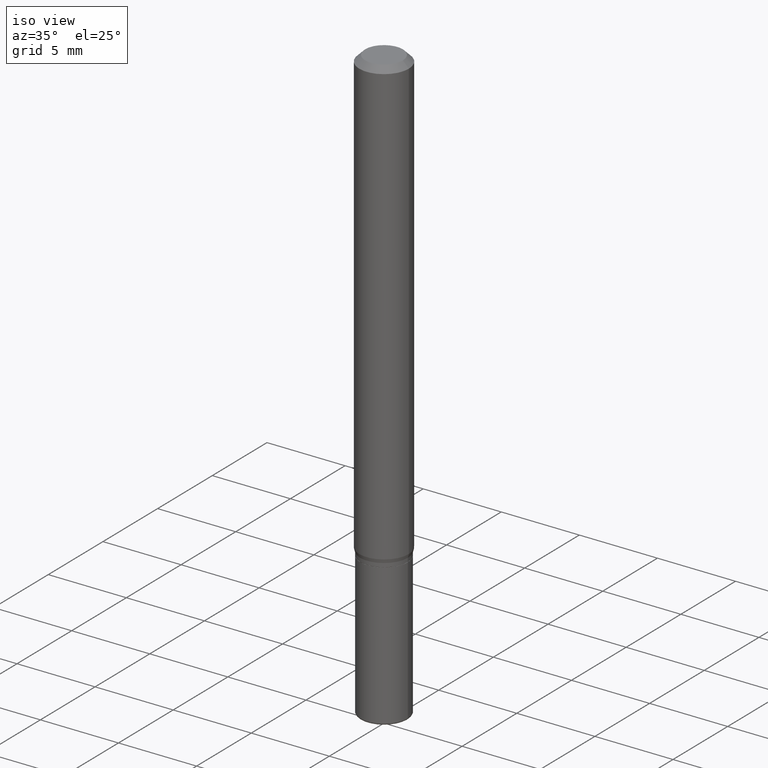
[diagram: clean part render]
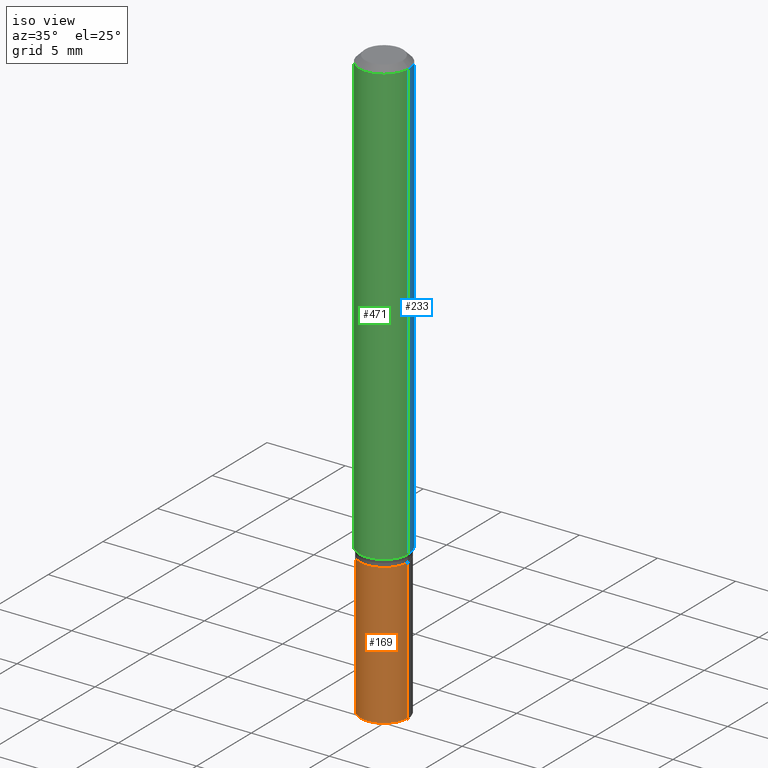
[diagram: same view with three faces highlighted in distinct colors, each labeled with its STEP entity id]
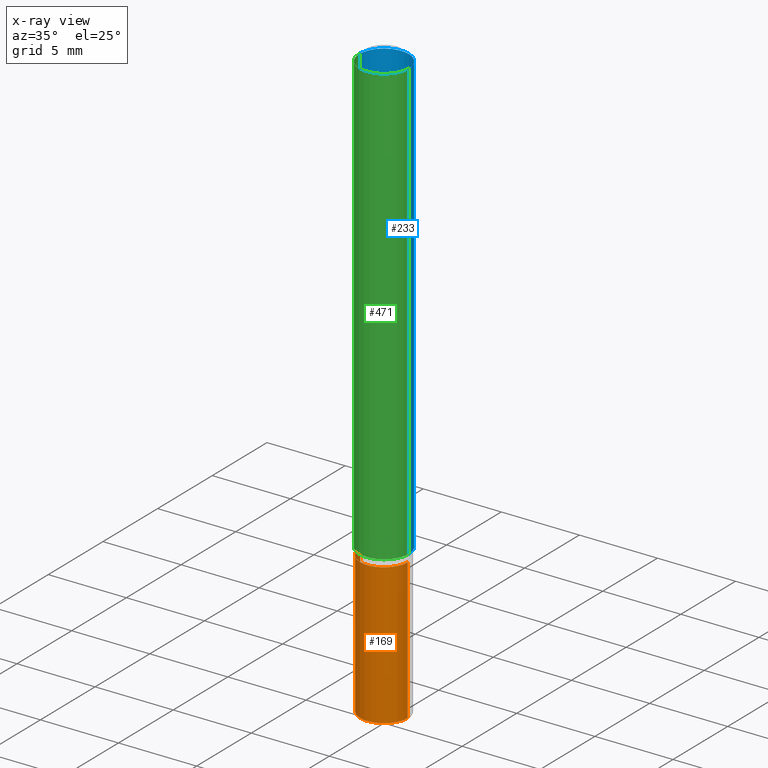
[diagram: x-ray of the same camera — body ghosted, the three highlighted faces saturated]
A machine part, iso view with three faces highlighted in distinct colors.
The next image is the same camera in x-ray (body ghosted, the three faces saturated) — at least one of them is partly hidden behind the body in this view.
Their STEP definitions:

[orange] entity #169 — the highlighted cylindrical surface (edge-blend (fillet) strip) has radius 1.524 mm, axis along (-0, 0, 1).
#5 = DIRECTION ( 'NONE',  ( 1.000000000000000000, -6.982962677686265922E-15, 4.876176775795935793E-29 ) ) ;
#13 = EDGE_CURVE ( 'NONE', #200, #102, #367, .T. ) ;
#28 = CARTESIAN_POINT ( 'NONE',  ( 2.787834439051055989E-29, -3.980288726281186698E-15, -1.140000000000000124 ) ) ;
#29 = CARTESIAN_POINT ( 'NONE',  ( 3.655975865246779122E-29, -5.219764601570503141E-15, -1.495000000000000107 ) ) ;
#44 = EDGE_CURVE ( 'NONE', #102, #347, #398, .T. ) ;
#45 = DIRECTION ( 'NONE',  ( -2.445468806185136877E-29, 3.491481338843145188E-15, 1.000000000000000000 ) ) ;
#59 = ORIENTED_EDGE ( 'NONE', *, *, #204, .F. ) ;
#70 = ORIENTED_EDGE ( 'NONE', *, *, #44, .T. ) ;
#102 = VERTEX_POINT ( 'NONE', #157 ) ;
#107 = VERTEX_POINT ( 'NONE', #129 ) ;
#125 = VECTOR ( 'NONE', #45, 39.37007874015748143 ) ;
#127 = AXIS2_PLACEMENT_3D ( 'NONE', #29, #161, #443 ) ;
#129 = CARTESIAN_POINT ( 'NONE',  ( -0.05999999999999999778, -4.173701022469784429E-15, -1.140000000000000124 ) ) ;
#133 = LINE ( 'NONE', #484, #125 ) ;
#157 = CARTESIAN_POINT ( 'NONE',  ( 0.06000000000000017819, -5.638742362231680564E-15, -1.495000000000000107 ) ) ;
#161 = DIRECTION ( 'NONE',  ( -2.445468806185136597E-29, 3.491481338843145583E-15, 1.000000000000000000 ) ) ;
#163 = CYLINDRICAL_SURFACE ( 'NONE', #457, 0.06000000000000009492 ) ;
#169 = ADVANCED_FACE ( 'NONE', ( #486 ), #163, .T. ) ;
#184 = ORIENTED_EDGE ( 'NONE', *, *, #13, .T. ) ;
#193 = DIRECTION ( 'NONE',  ( -2.445468806185136877E-29, 3.491481338843145188E-15, 1.000000000000000000 ) ) ;
#200 = VERTEX_POINT ( 'NONE', #489 ) ;
#204 = EDGE_CURVE ( 'NONE', #200, #107, #133, .T. ) ;
#241 = CIRCLE ( 'NONE', #414, 0.05999999999999999778 ) ;
#326 = VECTOR ( 'NONE', #193, 39.37007874015748143 ) ;
#347 = VERTEX_POINT ( 'NONE', #428 ) ;
#353 = CARTESIAN_POINT ( 'NONE',  ( 0.06000000000000009492, -4.189777606611766337E-16, 2.925706065477565960E-30 ) ) ;
#359 = ORIENTED_EDGE ( 'NONE', *, *, #463, .F. ) ;
#361 = DIRECTION ( 'NONE',  ( 1.000000000000000000, -6.982962677686268288E-15, 0.000000000000000000 ) ) ;
#367 = CIRCLE ( 'NONE', #127, 0.06000000000000017819 ) ;
#390 = EDGE_LOOP ( 'NONE', ( #59, #184, #70, #359 ) ) ;
#398 = LINE ( 'NONE', #353, #326 ) ;
#413 = CARTESIAN_POINT ( 'NONE',  ( 0.000000000000000000, 0.000000000000000000, 0.000000000000000000 ) ) ;
#414 = AXIS2_PLACEMENT_3D ( 'NONE', #28, #467, #361 ) ;
#428 = CARTESIAN_POINT ( 'NONE',  ( 0.05999999999999999778, -4.399266486942362543E-15, -1.140000000000000124 ) ) ;
#443 = DIRECTION ( 'NONE',  ( 1.000000000000000000, -6.982962677686263555E-15, 0.000000000000000000 ) ) ;
#446 = DIRECTION ( 'NONE',  ( -2.445468806185136597E-29, 3.491481338843145583E-15, 1.000000000000000000 ) ) ;
#457 = AXIS2_PLACEMENT_3D ( 'NONE', #413, #446, #5 ) ;
#463 = EDGE_CURVE ( 'NONE', #107, #347, #241, .T. ) ;
#467 = DIRECTION ( 'NONE',  ( -2.445468806185136597E-29, 3.491481338843145583E-15, 1.000000000000000000 ) ) ;
#484 = CARTESIAN_POINT ( 'NONE',  ( -0.06000000000000009492, 4.263256414560607860E-16, -2.951361054152947967E-30 ) ) ;
#486 = FACE_OUTER_BOUND ( 'NONE', #390, .T. ) ;
#489 = CARTESIAN_POINT ( 'NONE',  ( -0.06000000000000017125, -4.173701022469782852E-15, -1.495000000000000107 ) ) ;

[blue] entity #233 — the highlighted cylindrical surface (edge-blend (fillet) strip) has radius 1.5875 mm, axis along (-0, 0, 1).
#10 = CIRCLE ( 'NONE', #514, 0.06250000000000000000 ) ;
#14 = LINE ( 'NONE', #336, #99 ) ;
#24 = ORIENTED_EDGE ( 'NONE', *, *, #423, .T. ) ;
#26 = ORIENTED_EDGE ( 'NONE', *, *, #178, .T. ) ;
#50 = DIRECTION ( 'NONE',  ( 1.000000000000000000, -6.982962677686262766E-15, 0.000000000000000000 ) ) ;
#58 = DIRECTION ( 'NONE',  ( 1.000000000000000000, -6.982962677686266711E-15, 0.000000000000000000 ) ) ;
#81 = VERTEX_POINT ( 'NONE', #198 ) ;
#83 = DIRECTION ( 'NONE',  ( -2.445468806185136877E-29, 3.491481338843145188E-15, 1.000000000000000000 ) ) ;
#91 = CARTESIAN_POINT ( 'NONE',  ( 2.740563216406686834E-29, -3.912797948517154069E-15, -1.120669872981078452 ) ) ;
#99 = VECTOR ( 'NONE', #138, 39.37007874015748143 ) ;
#103 = EDGE_CURVE ( 'NONE', #396, #509, #321, .T. ) ;
#105 = ORIENTED_EDGE ( 'NONE', *, *, #340, .F. ) ;
#106 = DIRECTION ( 'NONE',  ( -2.445468806185136597E-29, 3.491481338843145583E-15, 1.000000000000000000 ) ) ;
#138 = DIRECTION ( 'NONE',  ( -2.445468806185136877E-29, 3.491481338843145188E-15, 1.000000000000000000 ) ) ;
#146 = CARTESIAN_POINT ( 'NONE',  ( 3.668203209277632395E-31, -5.237222008264614861E-17, -0.01499999999999970281 ) ) ;
#152 = CARTESIAN_POINT ( 'NONE',  ( 0.06250000000000000000, -4.888073874380378612E-16, -0.01499999999999970281 ) ) ;
#168 = DIRECTION ( 'NONE',  ( -2.445468806185136597E-29, 3.491481338843145583E-15, 1.000000000000000000 ) ) ;
#178 = EDGE_CURVE ( 'NONE', #396, #464, #10, .T. ) ;
#181 = ORIENTED_EDGE ( 'NONE', *, *, #103, .F. ) ;
#198 = CARTESIAN_POINT ( 'NONE',  ( -0.06250000000000000000, -1.538495874449837169E-15, -0.01499999999999970281 ) ) ;
#233 = ADVANCED_FACE ( 'NONE', ( #245 ), #492, .T. ) ;
#245 = FACE_OUTER_BOUND ( 'NONE', #502, .T. ) ;
#321 = LINE ( 'NONE', #477, #452 ) ;
#335 = DIRECTION ( 'NONE',  ( -2.445468806185136597E-29, 3.491481338843145583E-15, 1.000000000000000000 ) ) ;
#336 = CARTESIAN_POINT ( 'NONE',  ( -0.06250000000000000000, 4.440892098500626162E-16, -3.074334431409316114E-30 ) ) ;
#340 = EDGE_CURVE ( 'NONE', #509, #81, #481, .T. ) ;
#342 = CARTESIAN_POINT ( 'NONE',  ( 0.06250000000000000000, -4.349233115872545739E-15, -1.120669872981078452 ) ) ;
#357 = AXIS2_PLACEMENT_3D ( 'NONE', #146, #106, #58 ) ;
#396 = VERTEX_POINT ( 'NONE', #342 ) ;
#399 = CARTESIAN_POINT ( 'NONE',  ( -0.06250000000000000000, -3.468708738667091453E-15, -1.120669872981078452 ) ) ;
#407 = DIRECTION ( 'NONE',  ( 1.000000000000000000, -6.982962677686266711E-15, 4.876176775795935793E-29 ) ) ;
#423 = EDGE_CURVE ( 'NONE', #464, #81, #14, .T. ) ;
#444 = CARTESIAN_POINT ( 'NONE',  ( 0.000000000000000000, 0.000000000000000000, 0.000000000000000000 ) ) ;
#452 = VECTOR ( 'NONE', #83, 39.37007874015748143 ) ;
#464 = VERTEX_POINT ( 'NONE', #399 ) ;
#477 = CARTESIAN_POINT ( 'NONE',  ( 0.06250000000000000000, -4.364351673553916694E-16, 3.047610484872459871E-30 ) ) ;
#481 = CIRCLE ( 'NONE', #357, 0.06250000000000000000 ) ;
#492 = CYLINDRICAL_SURFACE ( 'NONE', #513, 0.06250000000000000000 ) ;
#502 = EDGE_LOOP ( 'NONE', ( #26, #24, #105, #181 ) ) ;
#509 = VERTEX_POINT ( 'NONE', #152 ) ;
#513 = AXIS2_PLACEMENT_3D ( 'NONE', #444, #168, #407 ) ;
#514 = AXIS2_PLACEMENT_3D ( 'NONE', #91, #335, #50 ) ;

[green] entity #471 — the highlighted cylindrical surface (edge-blend (fillet) strip) has radius 1.5875 mm, axis along (-0, 0, 1).
#14 = LINE ( 'NONE', #336, #99 ) ;
#37 = DIRECTION ( 'NONE',  ( -2.445468806185136597E-29, 3.491481338843145583E-15, 1.000000000000000000 ) ) ;
#69 = DIRECTION ( 'NONE',  ( -2.445468806185136597E-29, 3.491481338843145583E-15, 1.000000000000000000 ) ) ;
#75 = CARTESIAN_POINT ( 'NONE',  ( 0.000000000000000000, 0.000000000000000000, 0.000000000000000000 ) ) ;
#81 = VERTEX_POINT ( 'NONE', #198 ) ;
#83 = DIRECTION ( 'NONE',  ( -2.445468806185136877E-29, 3.491481338843145188E-15, 1.000000000000000000 ) ) ;
#99 = VECTOR ( 'NONE', #138, 39.37007874015748143 ) ;
#103 = EDGE_CURVE ( 'NONE', #396, #509, #321, .T. ) ;
#138 = DIRECTION ( 'NONE',  ( -2.445468806185136877E-29, 3.491481338843145188E-15, 1.000000000000000000 ) ) ;
#141 = CIRCLE ( 'NONE', #209, 0.06250000000000000000 ) ;
#150 = ORIENTED_EDGE ( 'NONE', *, *, #380, .F. ) ;
#152 = CARTESIAN_POINT ( 'NONE',  ( 0.06250000000000000000, -4.888073874380378612E-16, -0.01499999999999970281 ) ) ;
#158 = CYLINDRICAL_SURFACE ( 'NONE', #286, 0.06250000000000000000 ) ;
#176 = DIRECTION ( 'NONE',  ( 1.000000000000000000, -6.982962677686262766E-15, 0.000000000000000000 ) ) ;
#179 = EDGE_LOOP ( 'NONE', ( #381, #432, #240, #150 ) ) ;
#182 = AXIS2_PLACEMENT_3D ( 'NONE', #288, #373, #176 ) ;
#198 = CARTESIAN_POINT ( 'NONE',  ( -0.06250000000000000000, -1.538495874449837169E-15, -0.01499999999999970281 ) ) ;
#209 = AXIS2_PLACEMENT_3D ( 'NONE', #382, #69, #221 ) ;
#213 = EDGE_CURVE ( 'NONE', #464, #396, #226, .T. ) ;
#221 = DIRECTION ( 'NONE',  ( 1.000000000000000000, -6.982962677686266711E-15, 0.000000000000000000 ) ) ;
#226 = CIRCLE ( 'NONE', #182, 0.06250000000000000000 ) ;
#240 = ORIENTED_EDGE ( 'NONE', *, *, #103, .T. ) ;
#277 = FACE_OUTER_BOUND ( 'NONE', #179, .T. ) ;
#286 = AXIS2_PLACEMENT_3D ( 'NONE', #75, #37, #476 ) ;
#288 = CARTESIAN_POINT ( 'NONE',  ( 2.740563216406686834E-29, -3.912797948517154069E-15, -1.120669872981078452 ) ) ;
#321 = LINE ( 'NONE', #477, #452 ) ;
#336 = CARTESIAN_POINT ( 'NONE',  ( -0.06250000000000000000, 4.440892098500626162E-16, -3.074334431409316114E-30 ) ) ;
#342 = CARTESIAN_POINT ( 'NONE',  ( 0.06250000000000000000, -4.349233115872545739E-15, -1.120669872981078452 ) ) ;
#373 = DIRECTION ( 'NONE',  ( -2.445468806185136597E-29, 3.491481338843145583E-15, 1.000000000000000000 ) ) ;
#380 = EDGE_CURVE ( 'NONE', #81, #509, #141, .T. ) ;
#381 = ORIENTED_EDGE ( 'NONE', *, *, #423, .F. ) ;
#382 = CARTESIAN_POINT ( 'NONE',  ( 3.668203209277632395E-31, -5.237222008264614861E-17, -0.01499999999999970281 ) ) ;
#396 = VERTEX_POINT ( 'NONE', #342 ) ;
#399 = CARTESIAN_POINT ( 'NONE',  ( -0.06250000000000000000, -3.468708738667091453E-15, -1.120669872981078452 ) ) ;
#423 = EDGE_CURVE ( 'NONE', #464, #81, #14, .T. ) ;
#432 = ORIENTED_EDGE ( 'NONE', *, *, #213, .T. ) ;
#452 = VECTOR ( 'NONE', #83, 39.37007874015748143 ) ;
#464 = VERTEX_POINT ( 'NONE', #399 ) ;
#471 = ADVANCED_FACE ( 'NONE', ( #277 ), #158, .T. ) ;
#476 = DIRECTION ( 'NONE',  ( 1.000000000000000000, -6.982962677686266711E-15, 4.876176775795935793E-29 ) ) ;
#477 = CARTESIAN_POINT ( 'NONE',  ( 0.06250000000000000000, -4.364351673553916694E-16, 3.047610484872459871E-30 ) ) ;
#509 = VERTEX_POINT ( 'NONE', #152 ) ;